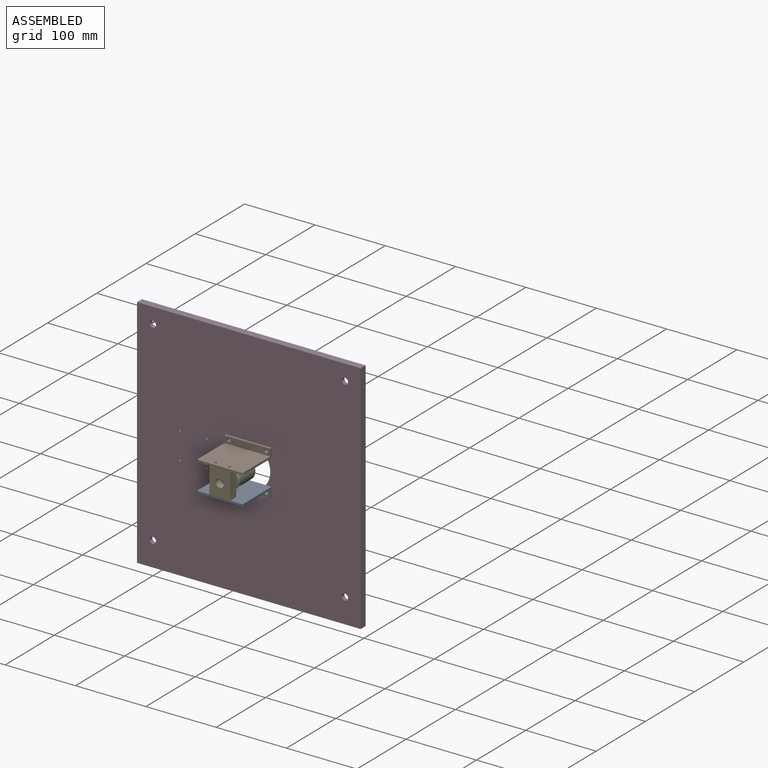
[diagram: assembled view]
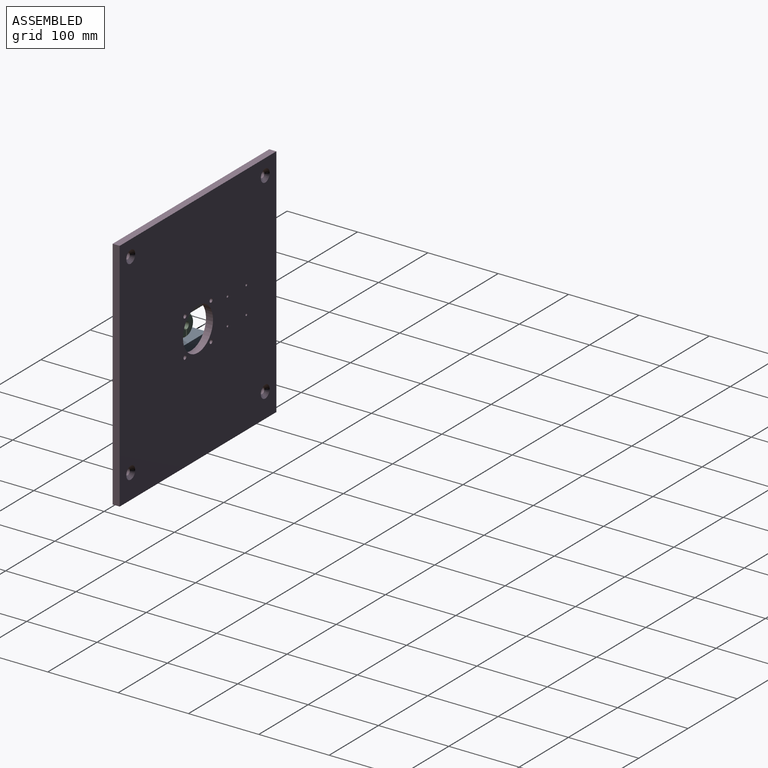
[diagram: assembled view, second angle]
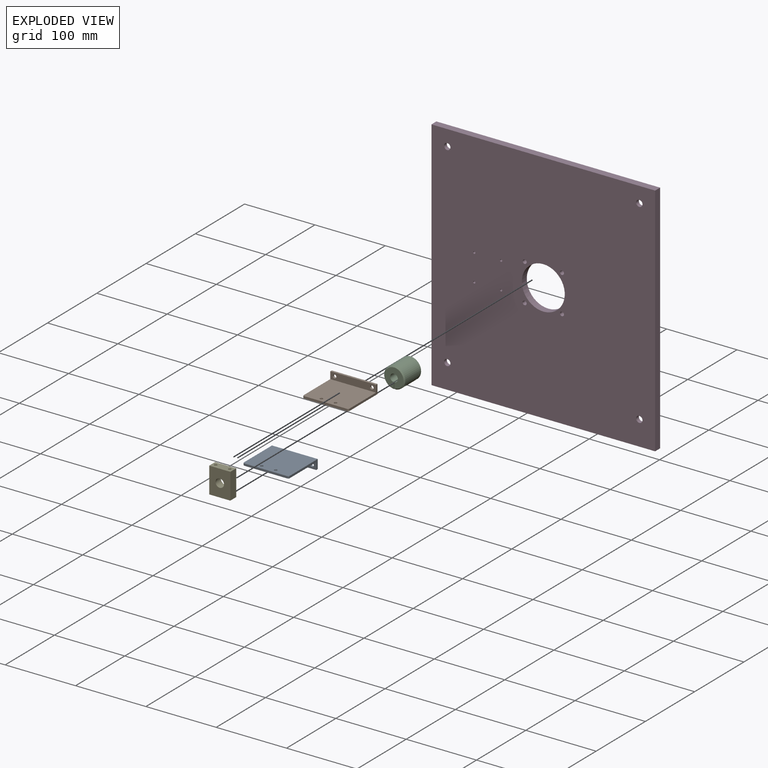
[diagram: exploded view]
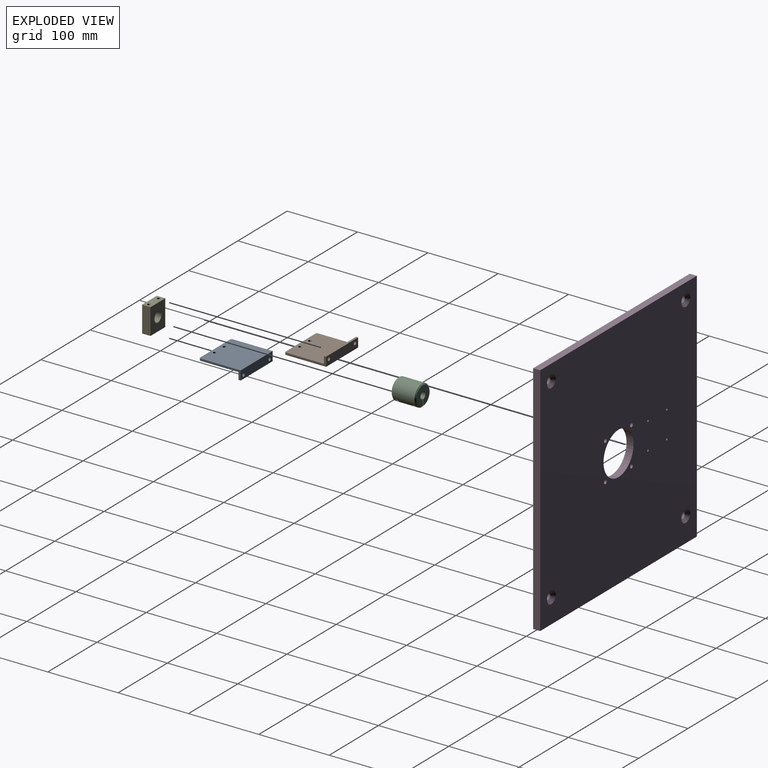
[diagram: exploded view, second angle]
ASSEMBLY  parts=5 mates=4
PART A: 14 faces, bbox 65x13x59 mm
  f0: plane 65x13mm, normal (0,0,1), area 804.1mm2, adj f1,f3,f5,f7,f8,f9
  f1: plane 57x13mm, normal (-1,0,0), area 201mm2, adj f0,f4,f5,f6,f7,f12
  f2: plane 61x3mm, normal (0,0,-1), area 183mm2, adj f4,f5,f12,f13
  f3: plane 57x13mm, normal (1,0,0), area 201mm2, adj f0,f4,f5,f6,f7,f13
  f4: plane 65x56mm, normal (0,-1,0), area 3611.9mm2, adj f1,f2,f3,f6,f10,f11,f12,f13
  f5: plane 65x59mm, normal (0,1,0), area 3806.9mm2, adj f0,f1,f2,f3,f10,f11,f12,f13
  f6: plane 65x10mm, normal (0,0,-1), area 609.1mm2, adj f1,f3,f4,f7,f8,f9
  f7: plane 65x3mm, normal (0,-1,0), area 195mm2, adj f0,f1,f3,f6
  f8: cylinder r=2.55mm len=5.1mm, axis (0,0,1), area 48.1mm2, adj f0,f6
  f9: cylinder r=2.55mm len=5.1mm, axis (0,0,1), area 48.1mm2, adj f0,f6
  f10: cylinder r=2.05mm len=4.1mm, axis (0,1,0), area 38.6mm2, adj f4,f5
  f11: cylinder r=2.05mm len=4.1mm, axis (0,1,0), area 38.6mm2, adj f4,f5
  f12: cylinder r=2mm len=3mm, axis (0,1,0), area 9.4mm2, adj f1,f2,f4,f5
  f13: cylinder r=2mm len=3mm, axis (0,-1,0), area 9.4mm2, adj f2,f3,f4,f5
PART B: same geometry as A
PART C: 18 faces, bbox 30x30x35 mm
  f0: cylinder r=15mm len=32mm, axis (0,0,-1), area 2877.8mm2, adj f7,f8,f10,f11,f12,f14,f16,f17
  f1: cylinder r=1.45mm len=4.25mm, axis (1,0,0), area 38.7mm2, adj f7,f13
  f2: cylinder r=5mm len=22.5mm, axis (0,0,1), area 673mm2, adj f3,f4,f7,f8
  f3: plane 27x26.98mm, normal (0,0,1), area 481.2mm2, adj f2,f7,f8,f16
  f4: plane 11x10.95mm, normal (0,0,-1), area 15.7mm2, adj f2,f5,f7,f8
  f5: cylinder r=5.5mm len=12.5mm, axis (0,0,-1), area 413.2mm2, adj f4,f6,f7,f8
  f6: plane 27x26.98mm, normal (0,0,-1), area 465.5mm2, adj f5,f7,f8,f17
  f7: plane 35x10.04mm, normal (-1,0,0), area 329.5mm2, adj f0,f1,f2,f3,f4,f5,f6,f11
  f8: plane 35x10.04mm, normal (1,0,0), area 329.5mm2, adj f0,f2,f3,f4,f5,f6,f9,f10
  f9: cylinder r=1.45mm len=4.25mm, axis (1,0,0), area 38.7mm2, adj f8,f15
  f10: cylinder r=1.45mm len=11.57mm, axis (1,0,0), area 94.2mm2, adj f0,f8
  f11: cylinder r=1.45mm len=11.58mm, axis (1,0,0), area 94.2mm2, adj f0,f7
  f12: cylinder r=2.9mm len=8.21mm, axis (1,0,0), area 106mm2, adj f0,f13
  f13: plane 5.8x5.8mm, normal (1,0,0), area 19.8mm2, adj f1,f12
  f14: cylinder r=2.9mm len=8.21mm, axis (-1,0,0), area 106mm2, adj f0,f15
  f15: plane 5.8x5.8mm, normal (-1,0,0), area 19.8mm2, adj f9,f14
  f16: cone r=13.5mm half-angle=45deg, axis (0,0,-1), area 186.7mm2, adj f0,f3,f7,f8
  f17: cone r=15mm half-angle=45deg, axis (0,0,1), area 186.7mm2, adj f0,f6,f7,f8
PART D: 23 faces, bbox 318x10x335 mm
  f0: cylinder r=1.6mm len=10mm, axis (0,1,0), area 100.5mm2, adj f21,f22
  f1: cylinder r=1.6mm len=10mm, axis (0,1,0), area 100.5mm2, adj f21,f22
  f2: cylinder r=1.6mm len=10mm, axis (0,1,0), area 100.5mm2, adj f21,f22
  f3: cylinder r=1.6mm len=10mm, axis (0,1,0), area 100.5mm2, adj f21,f22
  f4: cylinder r=2.85mm len=10mm, axis (0,1,0), area 179.1mm2, adj f21,f22
  f5: cylinder r=2.85mm len=10mm, axis (0,1,0), area 179.1mm2, adj f21,f22
  f6: cylinder r=2.85mm len=10mm, axis (0,1,0), area 179.1mm2, adj f21,f22
  f7: cylinder r=2.85mm len=10mm, axis (0,1,0), area 179.1mm2, adj f21,f22
  f8: cylinder r=30.5mm len=61mm, axis (0,1,0), area 1916.4mm2, adj f21,f22
  f9: cone r=8.96mm half-angle=45deg, axis (0,1,0), area 266.7mm2, adj f10,f21
  f10: cylinder r=4.5mm len=9mm, axis (0,1,0), area 156.6mm2, adj f9,f22
  f11: cone r=8.96mm half-angle=45deg, axis (0,1,0), area 266.7mm2, adj f12,f21
  f12: cylinder r=4.5mm len=9mm, axis (0,1,0), area 156.6mm2, adj f11,f22
  f13: cone r=8.96mm half-angle=45deg, axis (0,1,0), area 266.7mm2, adj f14,f21
  f14: cylinder r=4.5mm len=9mm, axis (0,1,0), area 156.6mm2, adj f13,f22
  f15: cone r=8.96mm half-angle=45deg, axis (0,1,0), area 266.7mm2, adj f16,f21
  f16: cylinder r=4.5mm len=9mm, axis (0,1,0), area 156.6mm2, adj f15,f22
  f17: plane 335x10mm, normal (-1,0,0), area 3350mm2, adj f18,f20,f21,f22
  f18: plane 318x10mm, normal (0,0,1), area 3180mm2, adj f17,f19,f21,f22
  f19: plane 335x10mm, normal (1,0,0), area 3350mm2, adj f18,f20,f21,f22
  f20: plane 318x10mm, normal (0,0,-1), area 3180mm2, adj f17,f19,f21,f22
  f21: plane 335x318mm, normal (0,1,0), area 102464.4mm2, adj f0,f1,f2,f3,f4,f5,f6,f7
  f22: plane 335x318mm, normal (0,-1,0), area 103218.8mm2, adj f0,f1,f2,f3,f4,f5,f6,f7
PART E: 17 faces, bbox 37x30x12 mm
  f0: plane 37x12mm, normal (0,1,0), area 444mm2, adj f1,f3,f4,f5
  f1: plane 30x12mm, normal (-1,0,0), area 334.9mm2, adj f0,f2,f4,f5,f12,f14
  f2: plane 37x12mm, normal (0,-1,0), area 444mm2, adj f1,f3,f4,f5
  f3: plane 30x12mm, normal (1,0,0), area 334.9mm2, adj f0,f2,f4,f5,f8,f10
  f4: plane 37x30mm, normal (0,0,1), area 956.1mm2, adj f0,f1,f2,f3,f6
  f5: plane 37x30mm, normal (0,0,-1), area 996.9mm2, adj f0,f1,f2,f3,f16
  f6: cylinder r=7mm len=14mm, axis (0,0,1), area 439.8mm2, adj f4,f7
  f7: plane 14x14mm, normal (0,0,1), area 40.8mm2, adj f6,f16
  f8: cylinder r=2mm len=8mm, axis (1,0,0), area 100.5mm2, adj f3,f9
  f9: plane 4x4mm, normal (1,0,0), area 12.6mm2, adj f8
  f10: cylinder r=2mm len=8mm, axis (1,0,0), area 100.5mm2, adj f3,f11
  f11: plane 4x4mm, normal (1,0,0), area 12.6mm2, adj f10
  f12: cylinder r=2mm len=8mm, axis (-1,0,0), area 100.5mm2, adj f1,f13
  f13: plane 4x4mm, normal (-1,0,0), area 12.6mm2, adj f12
  f14: cylinder r=2mm len=8mm, axis (-1,0,0), area 100.5mm2, adj f1,f15
  f15: plane 4x4mm, normal (-1,0,0), area 12.6mm2, adj f14
  f16: cylinder r=6mm len=12mm, axis (0,0,1), area 75.4mm2, adj f5,f7
PLACE A rot(axis=(0,0.71,0.71),180deg) t=(-35.36,5.97,43.36)mm
PLACE B rot(axis=(-1,0,0),90deg) t=(-100.36,5.97,80.4)mm
PLACE C rot(axis=(-1,0,0),90deg) t=(-67.86,-35.56,61.86)mm
PLACE D t=(-226.86,5.97,-105.62)mm
PLACE E rot(axis=(-0.58,0.58,0.58),120deg) t=(-82.86,-53.03,80.36)mm
MATE revolute A.f9 <-> D.f7  axis (0,1,0) through (-94.37,5.97,35.36)mm
MATE slider C.f0 <-> E.f6  axis (0,1,0) through (-67.86,-11.81,61.86)mm
MATE revolute B.f8 <-> D.f6  axis (0,1,0) through (-94.37,5.97,88.4)mm
MATE revolute E.f10 <-> A.f11  axis (0,0,-1) through (-77.86,-47.03,43.36)mm
